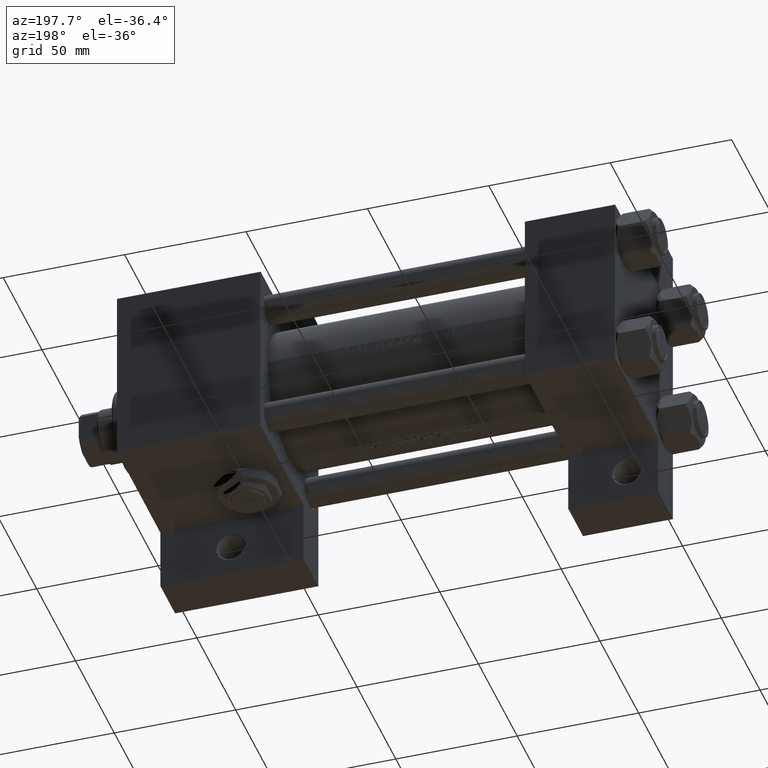
[diagram: clean part render]
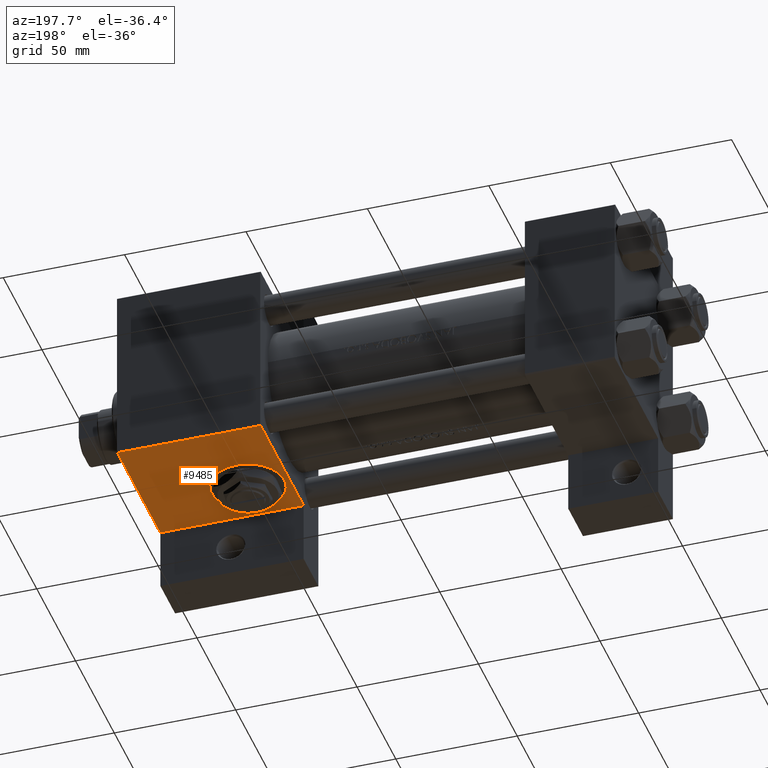
[diagram: same view with one face highlighted and labeled with its STEP entity id]
A machine part, auxiliary view. The second image highlights one B-rep face of the part: STEP entity #9485.
In plain terms, the highlighted planar face has unit normal (0, 0, -1).
Its self-contained STEP definition (entity closure, byte-faithful):
#2363 = CARTESIAN_POINT ( 'NONE',  ( 205.0000000000000000, 37.50000000000000000, 37.49999999999999289 ) ) ;
#3878 = DIRECTION ( 'NONE',  ( -0.000000000000000000, 1.000000000000000000, 0.000000000000000000 ) ) ;
#4645 = EDGE_CURVE ( 'NONE', #23116, #36561, #39993, .T. ) ;
#5622 = DIRECTION ( 'NONE',  ( 0.000000000000000000, 0.000000000000000000, -1.000000000000000000 ) ) ;
#5697 = VECTOR ( 'NONE', #48198, 1000.000000000000000 ) ;
#6748 = VERTEX_POINT ( 'NONE', #24176 ) ;
#7903 = LINE ( 'NONE', #22870, #29436 ) ;
#8028 = DIRECTION ( 'NONE',  ( 0.000000000000000000, 1.000000000000000000, 0.000000000000000000 ) ) ;
#8209 = AXIS2_PLACEMENT_3D ( 'NONE', #23244, #8028, #48644 ) ;
#9485 = ADVANCED_FACE ( 'NONE', ( #13159, #48494 ), #10888, .T. ) ;
#9994 = EDGE_LOOP ( 'NONE', ( #48640, #41545 ) ) ;
#10888 = PLANE ( 'NONE',  #35623 ) ;
#12054 = CARTESIAN_POINT ( 'NONE',  ( 205.0000000000000284, 37.49999999999999289, -18.50000000000000000 ) ) ;
#12738 = VECTOR ( 'NONE', #5622, 1000.000000000000000 ) ;
#13159 = FACE_BOUND ( 'NONE', #9994, .T. ) ;
#14283 = EDGE_CURVE ( 'NONE', #6748, #34814, #7903, .T. ) ;
#15416 = CIRCLE ( 'NONE', #32117, 15.00000000000002487 ) ;
#15524 = VERTEX_POINT ( 'NONE', #34989 ) ;
#16184 = DIRECTION ( 'NONE',  ( -1.000000000000000000, 1.176083712526648456E-16, -0.000000000000000000 ) ) ;
#17584 = CARTESIAN_POINT ( 'NONE',  ( 205.0000000000000000, 37.50000000000000000, 36.99999999999999289 ) ) ;
#17701 = EDGE_CURVE ( 'NONE', #36561, #34814, #43054, .T. ) ;
#18034 = DIRECTION ( 'NONE',  ( 0.000000000000000000, 1.000000000000000000, 0.000000000000000000 ) ) ;
#18314 = LINE ( 'NONE', #17584, #5697 ) ;
#22423 = EDGE_CURVE ( 'NONE', #6748, #23116, #18314, .T. ) ;
#22870 = CARTESIAN_POINT ( 'NONE',  ( 146.0000000000000000, 37.50000000000000000, 37.49999999999999289 ) ) ;
#23116 = VERTEX_POINT ( 'NONE', #34878 ) ;
#23244 = CARTESIAN_POINT ( 'NONE',  ( 162.9999999999999716, 37.50000000000000000, 0.000000000000000000 ) ) ;
#24176 = CARTESIAN_POINT ( 'NONE',  ( 146.0000000000000000, 37.50000000000000000, 36.99999999999999289 ) ) ;
#25607 = VECTOR ( 'NONE', #16184, 1000.000000000000000 ) ;
#28381 = EDGE_LOOP ( 'NONE', ( #45297, #38612, #48779, #34075 ) ) ;
#29436 = VECTOR ( 'NONE', #38044, 1000.000000000000000 ) ;
#31605 = CARTESIAN_POINT ( 'NONE',  ( 146.0000000000000000, 37.50000000000000000, -18.50000000000000000 ) ) ;
#32117 = AXIS2_PLACEMENT_3D ( 'NONE', #36935, #18034, #33217 ) ;
#32885 = CARTESIAN_POINT ( 'NONE',  ( 162.9999999999999716, 37.50000000000000000, -15.00000000000002487 ) ) ;
#33217 = DIRECTION ( 'NONE',  ( 0.000000000000000000, 0.000000000000000000, 1.000000000000000000 ) ) ;
#34075 = ORIENTED_EDGE ( 'NONE', *, *, #17701, .T. ) ;
#34814 = VERTEX_POINT ( 'NONE', #42534 ) ;
#34878 = CARTESIAN_POINT ( 'NONE',  ( 205.0000000000000000, 37.50000000000000000, 36.99999999999999289 ) ) ;
#34989 = CARTESIAN_POINT ( 'NONE',  ( 162.9999999999999716, 37.50000000000000000, 15.00000000000002487 ) ) ;
#35623 = AXIS2_PLACEMENT_3D ( 'NONE', #37517, #3878, #41503 ) ;
#36561 = VERTEX_POINT ( 'NONE', #12054 ) ;
#36935 = CARTESIAN_POINT ( 'NONE',  ( 162.9999999999999716, 37.50000000000000000, 0.000000000000000000 ) ) ;
#37170 = VERTEX_POINT ( 'NONE', #32885 ) ;
#37517 = CARTESIAN_POINT ( 'NONE',  ( 205.0000000000000000, 37.50000000000000000, 37.49999999999999289 ) ) ;
#38044 = DIRECTION ( 'NONE',  ( 0.000000000000000000, 0.000000000000000000, -1.000000000000000000 ) ) ;
#38612 = ORIENTED_EDGE ( 'NONE', *, *, #22423, .T. ) ;
#39209 = EDGE_CURVE ( 'NONE', #15524, #37170, #15416, .T. ) ;
#39246 = EDGE_CURVE ( 'NONE', #37170, #15524, #48772, .T. ) ;
#39993 = LINE ( 'NONE', #2363, #12738 ) ;
#41503 = DIRECTION ( 'NONE',  ( 0.000000000000000000, -0.000000000000000000, 1.000000000000000000 ) ) ;
#41545 = ORIENTED_EDGE ( 'NONE', *, *, #39246, .F. ) ;
#42534 = CARTESIAN_POINT ( 'NONE',  ( 146.0000000000000000, 37.50000000000000000, -18.50000000000000355 ) ) ;
#43054 = LINE ( 'NONE', #31605, #25607 ) ;
#45297 = ORIENTED_EDGE ( 'NONE', *, *, #14283, .F. ) ;
#48198 = DIRECTION ( 'NONE',  ( 1.000000000000000000, 0.000000000000000000, 0.000000000000000000 ) ) ;
#48494 = FACE_OUTER_BOUND ( 'NONE', #28381, .T. ) ;
#48640 = ORIENTED_EDGE ( 'NONE', *, *, #39209, .F. ) ;
#48644 = DIRECTION ( 'NONE',  ( 0.000000000000000000, 0.000000000000000000, 1.000000000000000000 ) ) ;
#48772 = CIRCLE ( 'NONE', #8209, 15.00000000000002487 ) ;
#48779 = ORIENTED_EDGE ( 'NONE', *, *, #4645, .T. ) ;